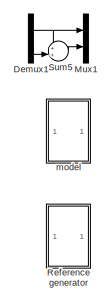
[diagram: root canvas - part 1/2, top left region]
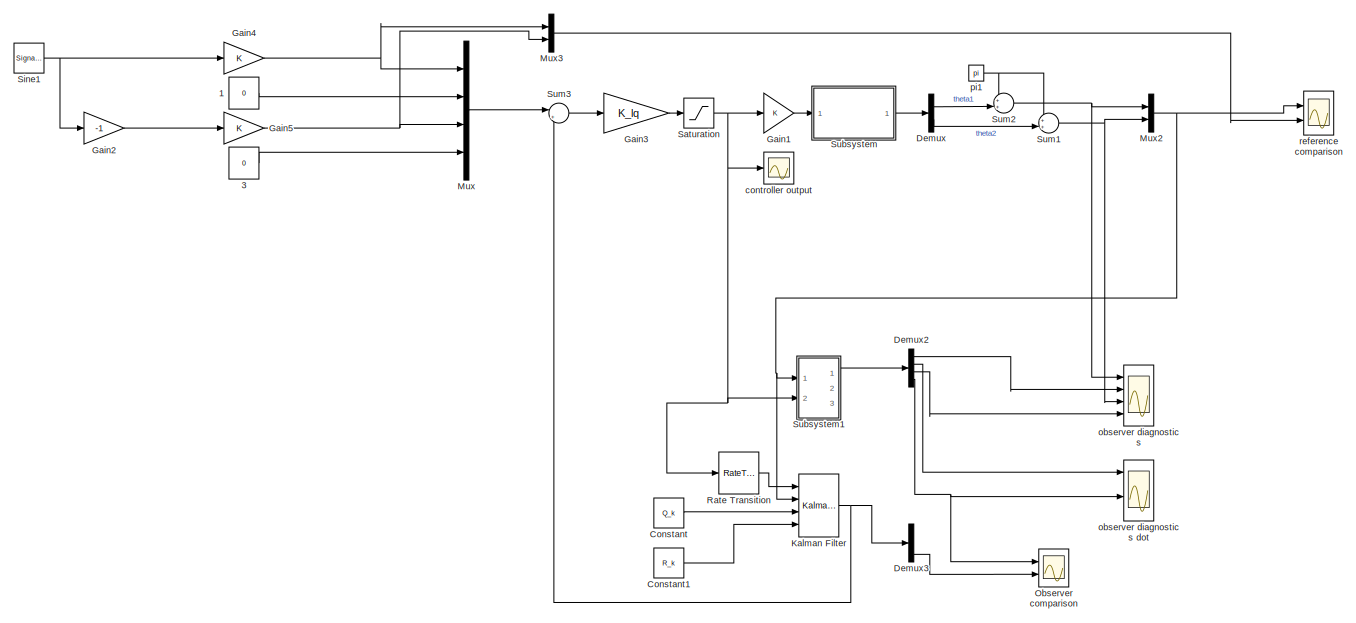
[diagram: root canvas - part 2/2, full width, bottom band]
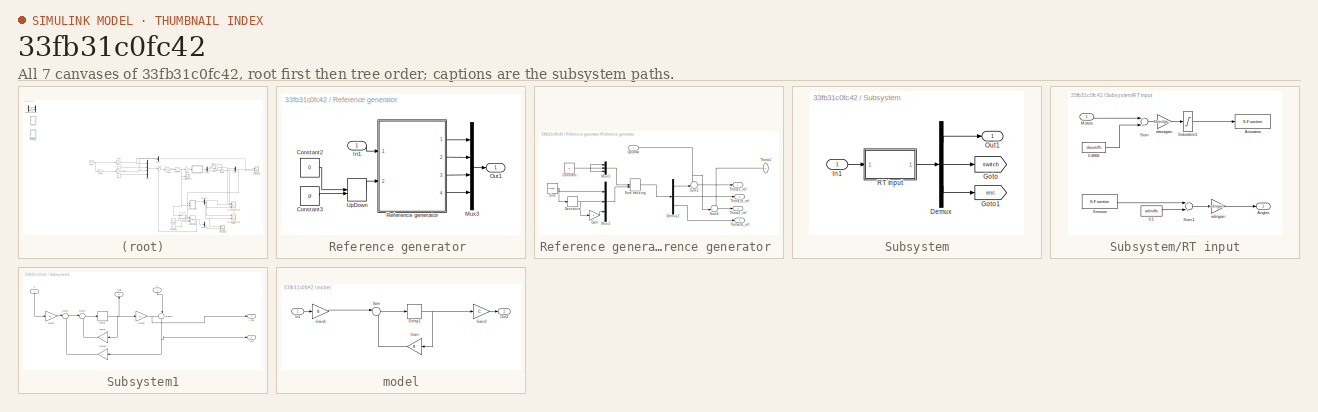
[diagram: thumbnail index - all 7 canvases of the model, root first then tree order]
MODEL slx_33fb31c0fc42
KIND model
CONFIG AbsTol = auto
CONFIG EnableMultiTasking = on
CONFIG FixedStep = auto
CONFIG MaxStep = auto
CONFIG MinStep = auto
CONFIG RelTol = 1e-3
CONFIG SampleTimeConstraint = Unconstrained
CONFIG Solver = ode45
CONFIG SolverName = ode45
CONFIG StartTime = 0.0
CONFIG StopTime = 60
BLOCK [Constant] 1
  Value = 0
BLOCK [Constant] 3
  Value = 0
BLOCK [Constant] Constant
  Value = Q_k
BLOCK [Constant] Constant1
  Value = R_k
BLOCK [Demux] Demux
  DisplayOption = bar
  Outputs = 2
  Ports = [1, 2]
BLOCK [Demux] Demux1
  Commented = on
  DisplayOption = bar
  Outputs = 2
  Ports = [1, 2]
BLOCK [Demux] Demux2
  DisplayOption = bar
  Ports = [1, 4]
BLOCK [Demux] Demux3
  DisplayOption = bar
  Ports = [1, 4]
BLOCK [Gain] Gain1
  Multiplication = Matrix(K*u)
  OutDataTypeStr = Inherit: Inherit via internal rule
  ParamDataTypeStr = Inherit: Inherit via internal rule
  SaturateOnIntegerOverflow = off
BLOCK [Gain] Gain2
  Gain = -1
  Multiplication = Matrix(K*u)
  OutDataTypeStr = Inherit: Inherit via internal rule
  ParamDataTypeStr = Inherit: Inherit via internal rule
  SaturateOnIntegerOverflow = off
BLOCK [Gain] Gain3
  Gain = K_lq
  Multiplication = Matrix(K*u)
  OutDataTypeStr = Inherit: Inherit via internal rule
  ParamDataTypeStr = Inherit: Inherit via internal rule
  SaturateOnIntegerOverflow = off
BLOCK [Gain] Gain4
  Multiplication = Matrix(K*u)
  OutDataTypeStr = Inherit: Inherit via internal rule
  ParamDataTypeStr = Inherit: Inherit via internal rule
  SaturateOnIntegerOverflow = off
BLOCK [Gain] Gain5
  Multiplication = Matrix(K*u)
  OutDataTypeStr = Inherit: Inherit via internal rule
  ParamDataTypeStr = Inherit: Inherit via internal rule
  SaturateOnIntegerOverflow = off
BLOCK [Reference] Kalman Filter  REF=ctrlSharedLib/Kalman Filter
  Ports = [4, 1]
  SourceBlock = ctrlSharedLib/Kalman Filter
  SourceType = ctrlKalmanFilter
BLOCK [Mux] Mux
  DisplayOption = bar
  Ports = [4, 1]
BLOCK [Mux] Mux1
  Commented = on
  DisplayOption = bar
  Inputs = 2
  Ports = [2, 1]
BLOCK [Mux] Mux2
  DisplayOption = bar
  Inputs = 2
  Ports = [2, 1]
BLOCK [Mux] Mux3
  DisplayOption = bar
  Inputs = 2
  Ports = [2, 1]
BLOCK [Scope] Observer comparison
  NumInputPorts = 2
  Ports = [2]
  ScopeSpecificationString = Simulink.scopes.TimeScopeBlockCfg('CurrentConfiguration', extmgr.ConfigurationSet(extmgr.Configuration('Core','General UI',true),extmgr.Configuration('Core','Source UI',true),extmgr.Configuration('Sources','WiredSimulink',true,'DataLoggingVariableName','ScopeData2'),extmgr.Configuration('Visuals','Time Domain',true,'SerializedDisplays',{struct('MinYLimReal','-699.03322','MaxYLimReal','645.03376','...<+1479ch>
BLOCK [RateTransition] Rate Transition
  OutPortSampleTime = h
BLOCK [SubSystem] Reference generator 
  Ports = [1, 1]
  RequestExecContextInheritance = off
  Variant = off
BLOCK [Constant] Reference generator /Constant2
  Value = 0
BLOCK [Constant] Reference generator /Constant3
  Value = pi
BLOCK [Inport] Reference generator /In1
  IconDisplay = Port number
BLOCK [Mux] Reference generator /Mux3
  DisplayOption = bar
  Ports = [4, 1]
BLOCK [Outport] Reference generator /Out1
  IconDisplay = Port number
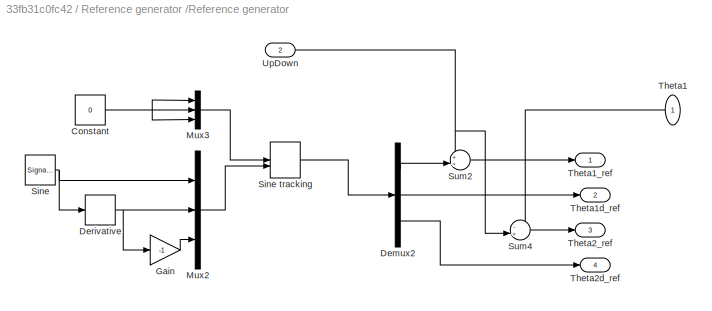
BLOCK [SubSystem] Reference generator /Reference generator 
  Ports = [2, 4]
  RequestExecContextInheritance = off
  Variant = off
BLOCK [Constant] Reference generator /Reference generator /Constant
  Value = 0
BLOCK [Demux] Reference generator /Reference generator /Demux2
  DisplayOption = bar
  Outputs = 3
  Ports = [1, 3]
BLOCK [Derivative] Reference generator /Reference generator /Derivative
BLOCK [Gain] Reference generator /Reference generator /Gain
  Gain = -1
  OutDataTypeStr = Inherit: Inherit via internal rule
  ParamDataTypeStr = Inherit: Inherit via internal rule
  SaturateOnIntegerOverflow = off
BLOCK [Mux] Reference generator /Reference generator /Mux2
  DisplayOption = bar
  Inputs = 3
  Ports = [3, 1]
BLOCK [Mux] Reference generator /Reference generator /Mux3
  DisplayOption = bar
  Inputs = 3
  Ports = [3, 1]
BLOCK [SignalGenerator] Reference generator /Reference generator /Sine
  Amplitude = Amp
  Frequency = Freq
  Ports = [0, 1]
BLOCK [ManualSwitch] Reference generator /Reference generator /Sine tracking
BLOCK [Sum] Reference generator /Reference generator /Sum2
  IconShape = round
  InputSameDT = off
  Inputs = ++|
  OutDataTypeStr = Inherit: Inherit via internal rule
  Ports = [2, 1]
  SaturateOnIntegerOverflow = off
BLOCK [Sum] Reference generator /Reference generator /Sum4
  IconShape = round
  InputSameDT = off
  Inputs = -+|
  OutDataTypeStr = Inherit: Inherit via internal rule
  Ports = [2, 1]
  SaturateOnIntegerOverflow = off
BLOCK [Inport] Reference generator /Reference generator /Theta1
  IconDisplay = Port number
BLOCK [Outport] Reference generator /Reference generator /Theta1_ref
  IconDisplay = Port number
BLOCK [Outport] Reference generator /Reference generator /Theta1d_ref
  IconDisplay = Port number
  Port = 2
BLOCK [Outport] Reference generator /Reference generator /Theta2_ref
  IconDisplay = Port number
  Port = 3
BLOCK [Outport] Reference generator /Reference generator /Theta2d_ref
  IconDisplay = Port number
  Port = 4
BLOCK [Inport] Reference generator /Reference generator /UpDown
  IconDisplay = Port number
  Port = 2
BLOCK [ManualSwitch] Reference generator /UpDown
  CurrentSetting = 0
BLOCK [Saturate] Saturation
  InputPortMap = u0
  LowerLimit = -1
  Ports = [1, 1]
  UpperLimit = 1
BLOCK [SignalGenerator] Sine1
  Amplitude = Amp
  Frequency = Freq
  Ports = [0, 1]
BLOCK [SubSystem] Subsystem
  Ports = [1, 1]
  RequestExecContextInheritance = off
  Variant = off
BLOCK [Demux] Subsystem/Demux
  DisplayOption = bar
  Outputs = [2 4 1]
  Ports = [1, 3]
BLOCK [Goto] Subsystem/Goto
  GotoTag = switch
  TagVisibility = global
BLOCK [Goto] Subsystem/Goto1
  GotoTag = enc
  TagVisibility = global
BLOCK [Inport] Subsystem/In1
  IconDisplay = Port number
BLOCK [Outport] Subsystem/Out1
  IconDisplay = Port number
BLOCK [SubSystem] Subsystem/RT input
  Ports = [1, 1]
  RequestExecContextInheritance = off
  Variant = off
BLOCK [Constant] Subsystem/RT input/0.1
  Value = adinoffs
BLOCK [Constant] Subsystem/RT input/0.4868
  Value = daoutoffs
BLOCK [S-Function] Subsystem/RT input/Actuators
  EnableBusSupport = off
  FunctionName = sfusbout
  Parameters = Ts, fugihandle
  Ports = [1]
  SFcnIsStateOwnerBlock = off
  SFunctionDeploymentMode = off
BLOCK [Outport] Subsystem/RT input/Angles
  IconDisplay = Port number
BLOCK [Inport] Subsystem/RT input/Motors
  IconDisplay = Port number
BLOCK [Saturate] Subsystem/RT input/Saturation1
  InputPortMap = u0
  LowerLimit = -10
  Ports = [1, 1]
  UpperLimit = 10
BLOCK [S-Function] Subsystem/RT input/Sensors
  EnableBusSupport = off
  FunctionName = sfusbin
  Parameters = Ts, fugihandle, channels
  Ports = [0, 1]
  SFcnIsStateOwnerBlock = off
  SFunctionDeploymentMode = off
BLOCK [Sum] Subsystem/RT input/Sum
  Ports = [2, 1]
BLOCK [Sum] Subsystem/RT input/Sum1
  Ports = [2, 1]
BLOCK [Gain] Subsystem/RT input/adingain
  Gain = adingain
BLOCK [Gain] Subsystem/RT input/daoutgain
  Gain = daoutgain
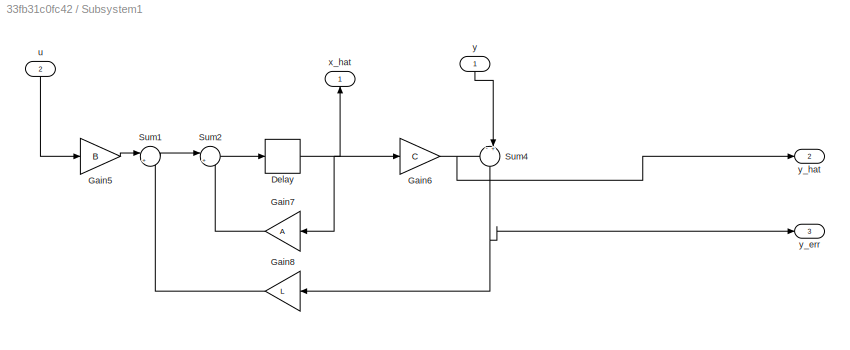
BLOCK [SubSystem] Subsystem1
  Ports = [2, 3]
  RequestExecContextInheritance = off
  Variant = off
BLOCK [Delay] Subsystem1/Delay
  DelayLength = 1
  InitialCondition = x_op_observer
  InputPortMap = u0
  Ports = [1, 1]
BLOCK [Gain] Subsystem1/Gain5
  Gain = B
  Multiplication = Matrix(K*u)
  OutDataTypeStr = Inherit: Inherit via internal rule
  ParamDataTypeStr = Inherit: Inherit via internal rule
  SaturateOnIntegerOverflow = off
BLOCK [Gain] Subsystem1/Gain6
  Gain = C
  Multiplication = Matrix(K*u)
  OutDataTypeStr = Inherit: Inherit via internal rule
  ParamDataTypeStr = Inherit: Inherit via internal rule
  SaturateOnIntegerOverflow = off
BLOCK [Gain] Subsystem1/Gain7
  Gain = A
  Multiplication = Matrix(K*u)
  OutDataTypeStr = Inherit: Inherit via internal rule
  ParamDataTypeStr = Inherit: Inherit via internal rule
  SaturateOnIntegerOverflow = off
BLOCK [Gain] Subsystem1/Gain8
  Gain = L
  Multiplication = Matrix(K*u)
  OutDataTypeStr = Inherit: Inherit via internal rule
  ParamDataTypeStr = Inherit: Inherit via internal rule
  SaturateOnIntegerOverflow = off
BLOCK [Sum] Subsystem1/Sum1
  IconShape = round
  InputSameDT = off
  Inputs = |++
  OutDataTypeStr = Inherit: Inherit via internal rule
  Ports = [2, 1]
  SaturateOnIntegerOverflow = off
BLOCK [Sum] Subsystem1/Sum2
  IconShape = round
  InputSameDT = off
  Inputs = |++
  OutDataTypeStr = Inherit: Inherit via internal rule
  Ports = [2, 1]
  SaturateOnIntegerOverflow = off
BLOCK [Sum] Subsystem1/Sum4
  IconShape = round
  InputSameDT = off
  Inputs = -+|
  OutDataTypeStr = Inherit: Inherit via internal rule
  Ports = [2, 1]
  SaturateOnIntegerOverflow = off
BLOCK [Inport] Subsystem1/u
  IconDisplay = Port number
  Port = 2
BLOCK [Outport] Subsystem1/x_hat
  IconDisplay = Port number
BLOCK [Inport] Subsystem1/y
  IconDisplay = Port number
BLOCK [Outport] Subsystem1/y_err
  IconDisplay = Port number
  Port = 3
BLOCK [Outport] Subsystem1/y_hat
  IconDisplay = Port number
  Port = 2
BLOCK [Sum] Sum1
  IconShape = round
  InputSameDT = off
  Inputs = ++|
  OutDataTypeStr = Inherit: Inherit via internal rule
  Ports = [2, 1]
  SaturateOnIntegerOverflow = off
BLOCK [Sum] Sum2
  IconShape = round
  InputSameDT = off
  Inputs = ++|
  OutDataTypeStr = Inherit: Inherit via internal rule
  Ports = [2, 1]
  SaturateOnIntegerOverflow = off
BLOCK [Sum] Sum3
  IconShape = round
  InputSameDT = off
  Inputs = |+-
  OutDataTypeStr = Inherit: Inherit via internal rule
  Ports = [2, 1]
  SaturateOnIntegerOverflow = off
BLOCK [Sum] Sum5
  Commented = on
  IconShape = round
  InputSameDT = off
  Inputs = ++|
  OutDataTypeStr = Inherit: Inherit via internal rule
  Ports = [2, 1]
  SaturateOnIntegerOverflow = off
BLOCK [Scope] controller output
  NumInputPorts = 1
  Ports = [1]
  ScopeSpecificationString = Simulink.scopes.TimeScopeBlockCfg('CurrentConfiguration', extmgr.ConfigurationSet(extmgr.Configuration('Core','General UI',true),extmgr.Configuration('Core','Source UI',true),extmgr.Configuration('Sources','WiredSimulink',true,'DataLoggingSaveFormat','StructureWithTime','DataLoggingLimitDataPoints',true,'DataLoggingDecimation','1','DataLoggingDecimateData',true),extmgr.Configuration('Visuals','Tim...<+1698ch>
BLOCK [SubSystem] model
  Ports = [1, 1]
  RequestExecContextInheritance = off
  Variant = off
BLOCK [Delay] model/Delay1
  Commented = on
  DelayLength = 1
  InitialCondition = x_op
  InputPortMap = u0
  Ports = [1, 1]
BLOCK [Gain] model/Gain
  Commented = on
  Gain = A
  Multiplication = Matrix(K*u)
  OutDataTypeStr = Inherit: Inherit via internal rule
  ParamDataTypeStr = Inherit: Inherit via internal rule
  SaturateOnIntegerOverflow = off
BLOCK [Gain] model/Gain2
  Commented = on
  Gain = C
  Multiplication = Matrix(K*u)
  OutDataTypeStr = Inherit: Inherit via internal rule
  ParamDataTypeStr = Inherit: Inherit via internal rule
  SaturateOnIntegerOverflow = off
BLOCK [Gain] model/Gain4
  Commented = on
  Gain = B
  Multiplication = Matrix(K*u)
  OutDataTypeStr = Inherit: Inherit via internal rule
  ParamDataTypeStr = Inherit: Inherit via internal rule
  SaturateOnIntegerOverflow = off
BLOCK [Inport] model/In1
  IconDisplay = Port number
BLOCK [Outport] model/Out1
  IconDisplay = Port number
BLOCK [Sum] model/Sum
  Commented = on
  IconShape = round
  InputSameDT = off
  Inputs = |++
  OutDataTypeStr = Inherit: Inherit via internal rule
  Ports = [2, 1]
  SaturateOnIntegerOverflow = off
BLOCK [Scope] observer diagnostics 
  NumInputPorts = 4
  Ports = [4]
  ScopeSpecificationString = Simulink.scopes.TimeScopeBlockCfg('CurrentConfiguration', extmgr.ConfigurationSet(extmgr.Configuration('Core','General UI',true),extmgr.Configuration('Core','Source UI',true),extmgr.Configuration('Sources','WiredSimulink',true,'DataLoggingVariableName','ScopeData5'),extmgr.Configuration('Visuals','Time Domain',true,'SerializedDisplays',{struct('MinYLimReal','-2151443171187819300000000000.00000','M...<+1726ch>
BLOCK [Scope] observer diagnostics dot 
  NumInputPorts = 4
  Ports = [4]
  ScopeSpecificationString = Simulink.scopes.TimeScopeBlockCfg('CurrentConfiguration', extmgr.ConfigurationSet(extmgr.Configuration('Core','General UI',true),extmgr.Configuration('Core','Source UI',true),extmgr.Configuration('Sources','WiredSimulink',true,'DataLoggingVariableName','ScopeData1'),extmgr.Configuration('Visuals','Time Domain',true,'SerializedDisplays',{struct('MinYLimReal','-5.36578','MaxYLimReal','7.34911','YLab...<+1487ch>
BLOCK [Constant] pi1
  Value = pi
BLOCK [Scope] reference comparison
  NumInputPorts = 2
  Ports = [2]
  ScopeSpecificationString = Simulink.scopes.TimeScopeBlockCfg('CurrentConfiguration', extmgr.ConfigurationSet(extmgr.Configuration('Core','General UI',true),extmgr.Configuration('Core','Source UI',true),extmgr.Configuration('Sources','WiredSimulink',true,'DataLoggingVariableName','ScopeData2'),extmgr.Configuration('Visuals','Time Domain',true,'SerializedDisplays',{struct('MinYLimReal','-1.24594','MaxYLimReal','1.23389','YLab...<+1481ch>
LINE 1:1 -> Mux:2
LINE 3:1 -> Mux:4
LINE Constant1:1 -> Kalman Filter:4
LINE Constant:1 -> Kalman Filter:3
NET Demux1:1 -> Mux1:1, Sum5:1
LINE Demux1:2 -> Sum5:2
LINE Demux2:1 -> observer diagnostics :2
LINE Demux2:2 -> observer diagnostics dot :1
LINE Demux2:3 -> observer diagnostics :4
NET Demux2:4 -> Observer comparison:1, observer diagnostics dot :3
LINE Demux3:4 -> Observer comparison:2
LINE Demux:1 -> Sum2:2
LINE Demux:2 -> Sum1:2
LINE Gain1:1 -> Subsystem:1
LINE Gain2:1 -> Gain5:1
LINE Gain3:1 -> Saturation:1
NET Gain4:1 -> Mux3:1, Mux:1
NET Gain5:1 -> Mux3:2, Mux:3
NET Kalman Filter:1 -> Demux3:1, Sum3:2
NET Mux2:1 -> Kalman Filter:2, Subsystem1:1, reference comparison:1
LINE Mux3:1 -> reference comparison:2
LINE Mux:1 -> Sum3:1
LINE Rate Transition:1 -> Kalman Filter:1
LINE Reference generator /Constant2:1 -> Reference generator /UpDown:1
LINE Reference generator /Constant3:1 -> Reference generator /UpDown:2
LINE Reference generator /In1:1 -> Reference generator /Reference generator :1
LINE Reference generator /Mux3:1 -> Reference generator /Out1:1
NET Reference generator /Reference generator /Constant:1 -> Reference generator /Reference generator /Mux3:1, Reference generator /Reference generator /Mux3:2, Reference generator /Reference generator /Mux3:3
LINE Reference generator /Reference generator /Demux2:1 -> Reference generator /Reference generator /Sum2:2
LINE Reference generator /Reference generator /Demux2:2 -> Reference generator /Reference generator /Theta1d_ref:1
LINE Reference generator /Reference generator /Demux2:3 -> Reference generator /Reference generator /Theta2d_ref:1
NET Reference generator /Reference generator /Derivative:1 -> Reference generator /Reference generator /Gain:1, Reference generator /Reference generator /Mux2:2
LINE Reference generator /Reference generator /Gain:1 -> Reference generator /Reference generator /Mux2:3
LINE Reference generator /Reference generator /Mux2:1 -> Reference generator /Reference generator /Sine tracking:2
LINE Reference generator /Reference generator /Mux3:1 -> Reference generator /Reference generator /Sine tracking:1
LINE Reference generator /Reference generator /Sine tracking:1 -> Reference generator /Reference generator /Demux2:1
NET Reference generator /Reference generator /Sine:1 -> Reference generator /Reference generator /Derivative:1, Reference generator /Reference generator /Mux2:1
LINE Reference generator /Reference generator /Sum2:1 -> Reference generator /Reference generator /Theta1_ref:1
LINE Reference generator /Reference generator /Sum4:1 -> Reference generator /Reference generator /Theta2_ref:1
LINE Reference generator /Reference generator /Theta1:1 -> Reference generator /Reference generator /Sum4:1
NET Reference generator /Reference generator /UpDown:1 -> Reference generator /Reference generator /Sum2:1, Reference generator /Reference generator /Sum4:2
LINE Reference generator /Reference generator :1 -> Reference generator /Mux3:1
LINE Reference generator /Reference generator :2 -> Reference generator /Mux3:2
LINE Reference generator /Reference generator :3 -> Reference generator /Mux3:3
LINE Reference generator /Reference generator :4 -> Reference generator /Mux3:4
LINE Reference generator /UpDown:1 -> Reference generator /Reference generator :2
NET Saturation:1 -> Gain1:1, Rate Transition:1, Subsystem1:2, controller output:1
NET Sine1:1 -> Gain2:1, Gain4:1
LINE Subsystem/Demux:1 -> Subsystem/Out1:1
LINE Subsystem/Demux:2 -> Subsystem/Goto:1
LINE Subsystem/Demux:3 -> Subsystem/Goto1:1
LINE Subsystem/In1:1 -> Subsystem/RT input:1
LINE Subsystem/RT input/0.1:1 -> Subsystem/RT input/Sum1:2
LINE Subsystem/RT input/0.4868:1 -> Subsystem/RT input/Sum:2
LINE Subsystem/RT input/Motors:1 -> Subsystem/RT input/Sum:1
LINE Subsystem/RT input/Saturation1:1 -> Subsystem/RT input/Actuators:1
LINE Subsystem/RT input/Sensors:1 -> Subsystem/RT input/Sum1:1
LINE Subsystem/RT input/Sum1:1 -> Subsystem/RT input/adingain:1
LINE Subsystem/RT input/Sum:1 -> Subsystem/RT input/daoutgain:1
LINE Subsystem/RT input/adingain:1 -> Subsystem/RT input/Angles:1
LINE Subsystem/RT input/daoutgain:1 -> Subsystem/RT input/Saturation1:1
LINE Subsystem/RT input:1 -> Subsystem/Demux:1
NET Subsystem1/Delay:1 -> Subsystem1/Gain6:1, Subsystem1/Gain7:1, Subsystem1/x_hat:1
LINE Subsystem1/Gain5:1 -> Subsystem1/Sum1:1
NET Subsystem1/Gain6:1 -> Subsystem1/Sum4:1, Subsystem1/y_hat:1
LINE Subsystem1/Gain7:1 -> Subsystem1/Sum2:2
LINE Subsystem1/Gain8:1 -> Subsystem1/Sum1:2
LINE Subsystem1/Sum1:1 -> Subsystem1/Sum2:1
LINE Subsystem1/Sum2:1 -> Subsystem1/Delay:1
NET Subsystem1/Sum4:1 -> Subsystem1/Gain8:1, Subsystem1/y_err:1
LINE Subsystem1/u:1 -> Subsystem1/Gain5:1
LINE Subsystem1/y:1 -> Subsystem1/Sum4:2
LINE Subsystem1:1 -> Demux2:1
LINE Subsystem:1 -> Demux:1
NET Sum1:1 -> Mux2:2, observer diagnostics :3
NET Sum2:1 -> Mux2:1, observer diagnostics :1
LINE Sum3:1 -> Gain3:1
LINE Sum5:1 -> Mux1:2
NET model/Delay1:1 -> model/Gain2:1, model/Gain:1
LINE model/Gain2:1 -> model/Out1:1
LINE model/Gain4:1 -> model/Sum:1
LINE model/Gain:1 -> model/Sum:2
LINE model/In1:1 -> model/Gain4:1
LINE model/Sum:1 -> model/Delay1:1
NET pi1:1 -> Sum1:1, Sum2:1
note: NET lines group one-source signal fan-out (src -> all destinations, sorted); 1:1 wires keep LINE
